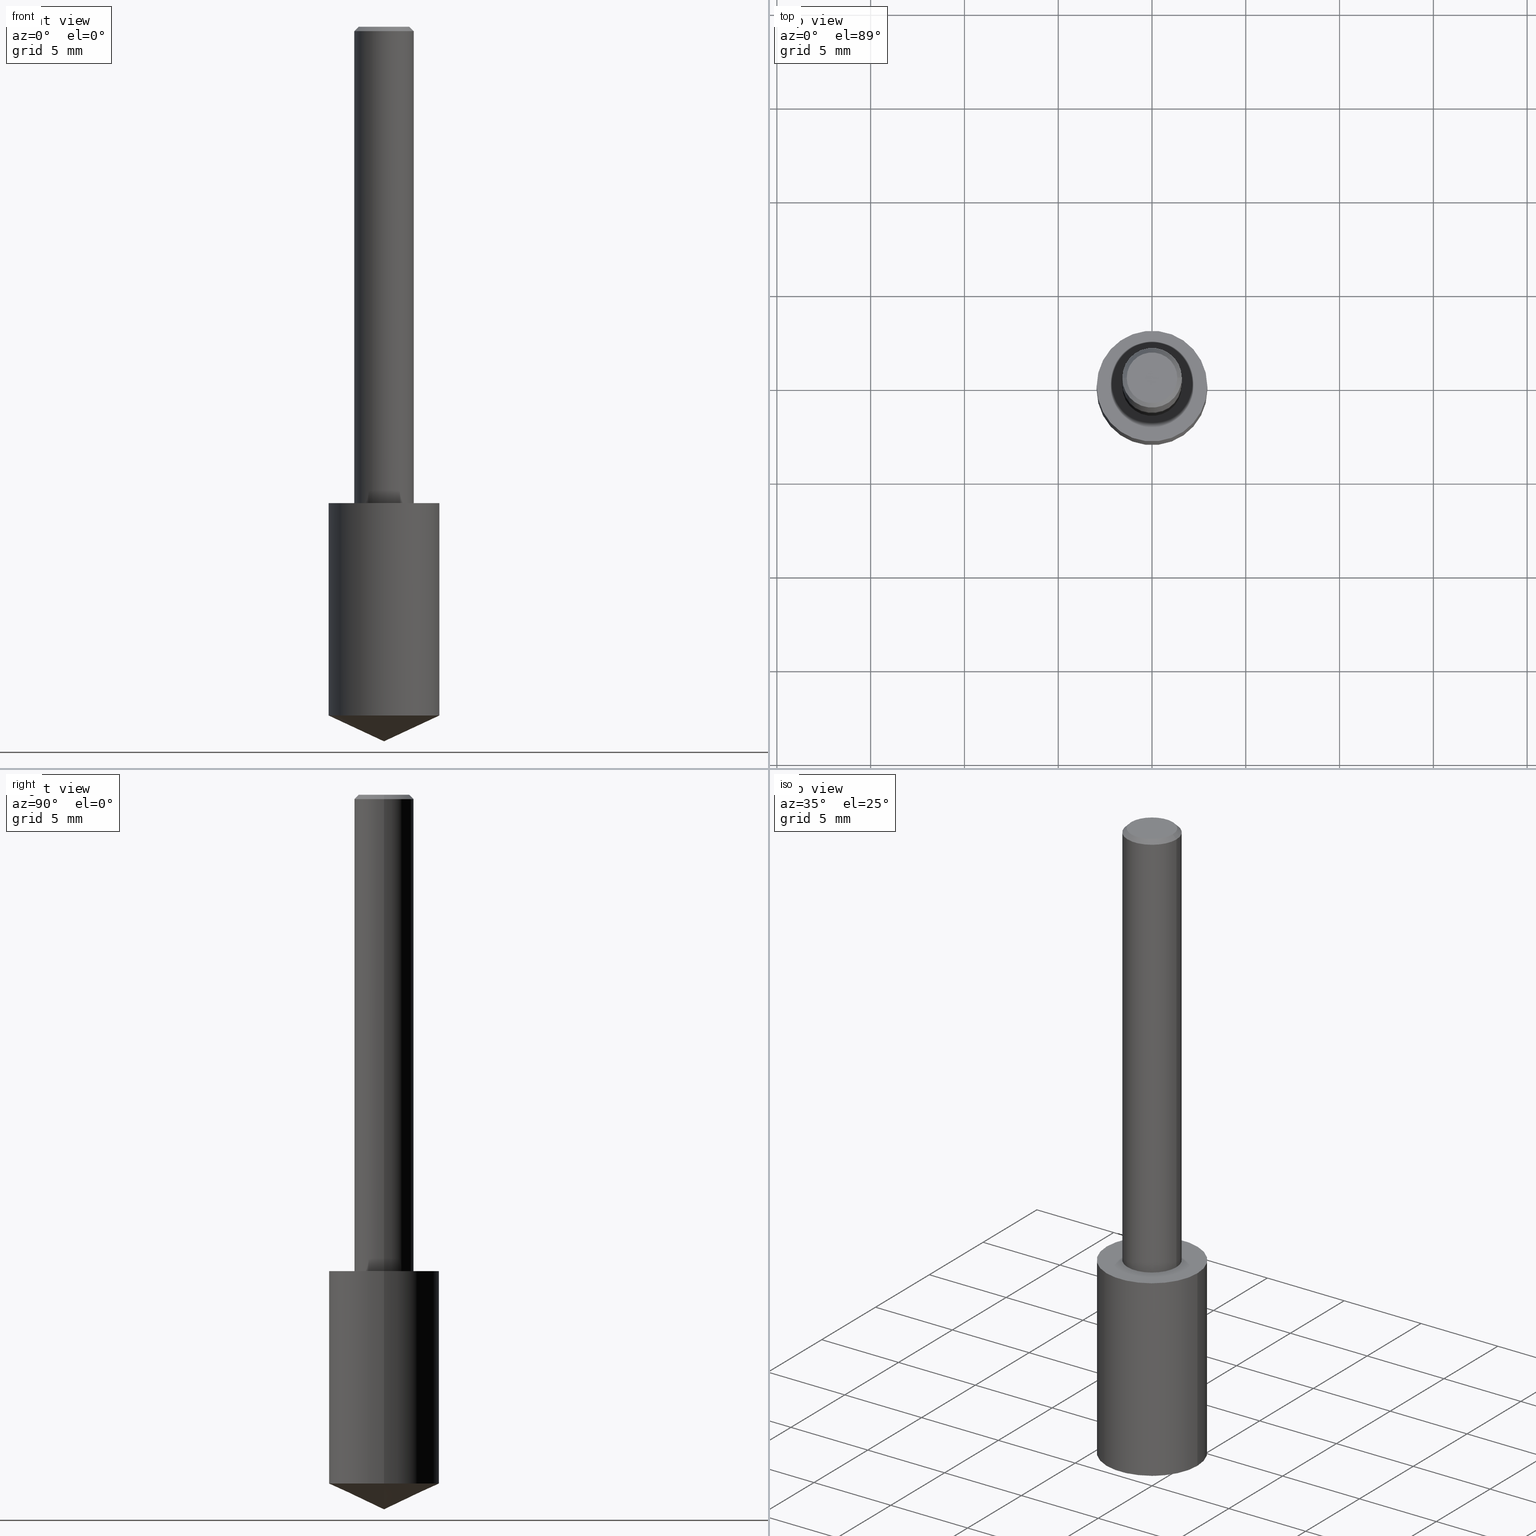
[diagram: canonical four-view strip — front | top / right | iso, engineering-drawing reading convention]
A machine part, canonical four-view strip (front | top / right | iso — engineering-drawing reading convention). The complete STEP part file that produces these views, byte-faithful:
ISO-10303-21;
HEADER;
FILE_DESCRIPTION (( 'STEP AP203' ),
    '1' );
FILE_NAME ('06159.STEP',
    '2024-04-30T18:32:01',
    ( '' ),
    ( '' ),
    'SwSTEP 2.0',
    'SolidWorks 2023',
    '' );
FILE_SCHEMA (( 'CONFIG_CONTROL_DESIGN' ));
ENDSEC;

DATA;
#1 = EDGE_LOOP ( 'NONE', ( #71, #5 ) ) ;
#2 = ORIENTED_EDGE ( 'NONE', *, *, #38, .F. ) ;
#3 = CARTESIAN_POINT ( 'NONE',  ( 2.445468806185137438E-29, -3.491481338843146371E-15, -1.000000000000000222 ) ) ;
#4 =( NAMED_UNIT ( * ) SI_UNIT ( $, .STERADIAN. ) SOLID_ANGLE_UNIT ( ) );
#5 = ORIENTED_EDGE ( 'NONE', *, *, #297, .T. ) ;
#6 = DATE_TIME_ROLE ( 'classification_date' ) ;
#7 = CC_DESIGN_APPROVAL ( #244, ( #108 ) ) ;
#8 = ORIENTED_EDGE ( 'NONE', *, *, #75, .T. ) ;
#9 = DIRECTION ( 'NONE',  ( -2.445468806185136597E-29, 3.491481338843145583E-15, 1.000000000000000000 ) ) ;
#10 = DIRECTION ( 'NONE',  ( -2.445468806185136597E-29, 3.491481338843145583E-15, 1.000000000000000000 ) ) ;
#11 = SECURITY_CLASSIFICATION ( '', '', #190 ) ;
#12 = CC_DESIGN_APPROVAL ( #191, ( #290 ) ) ;
#13 = DIRECTION ( 'NONE',  ( -2.445468806185136597E-29, 3.491481338843145583E-15, 1.000000000000000000 ) ) ;
#14 = CARTESIAN_POINT ( 'NONE',  ( 0.1161500000000000032, -4.302552453856406512E-15, -1.000000000000000222 ) ) ;
#15 = EDGE_CURVE ( 'NONE', #177, #308, #100, .T. ) ;
#16 = FACE_OUTER_BOUND ( 'NONE', #150, .T. ) ;
#17 = ORIENTED_EDGE ( 'NONE', *, *, #114, .T. ) ;
#18 = ORIENTED_EDGE ( 'NONE', *, *, #180, .F. ) ;
#19 = CARTESIAN_POINT ( 'NONE',  ( 0.06250000000000000000, -4.615137624123754923E-16, -0.009375000000000069042 ) ) ;
#20 = PRODUCT ( '06159', '06159', '', ( #294 ) ) ;
#21 =( LENGTH_UNIT ( ) NAMED_UNIT ( * ) SI_UNIT ( $, .METRE. ) );
#22 = EDGE_LOOP ( 'NONE', ( #295, #207, #69, #128 ) ) ;
#23 = CC_DESIGN_PERSON_AND_ORGANIZATION_ASSIGNMENT ( #165, #111, ( #108 ) ) ;
#24 = DIRECTION ( 'NONE',  ( 2.445468806185136597E-29, -3.491481338843145583E-15, -1.000000000000000000 ) ) ;
#25 = DATE_AND_TIME ( #212, #101 ) ;
#26 = DATE_AND_TIME ( #162, #266 ) ;
#27 = AXIS2_PLACEMENT_3D ( 'NONE', #277, #9, #39 ) ;
#28 = APPROVAL_STATUS ( 'not_yet_approved' ) ;
#29 = EDGE_CURVE ( 'NONE', #265, #314, #32, .T. ) ;
#30 = DIRECTION ( 'NONE',  ( -2.445468806185136597E-29, 3.491481338843145583E-15, 1.000000000000000000 ) ) ;
#31 = DIRECTION ( 'NONE',  ( 2.445468806185136597E-29, -3.491481338843145583E-15, -1.000000000000000000 ) ) ;
#32 = LINE ( 'NONE', #254, #299 ) ;
#33 = EDGE_LOOP ( 'NONE', ( #172, #51, #148, #227 ) ) ;
#34 = CARTESIAN_POINT ( 'NONE',  ( 0.06250000000000006939, -4.364351673553921624E-16, 3.047610484872463374E-30 ) ) ;
#35 = DIRECTION ( 'NONE',  ( -1.000000000000000000, 6.982962677686266711E-15, 0.000000000000000000 ) ) ;
#36 = VECTOR ( 'NONE', #120, 39.37007874015748143 ) ;
#37 = CARTESIAN_POINT ( 'NONE',  ( 2.292627005798582375E-31, -3.273263755165473266E-17, -0.009375000000000069042 ) ) ;
#38 = EDGE_CURVE ( 'NONE', #308, #177, #187, .T. ) ;
#39 = DIRECTION ( 'NONE',  ( 1.000000000000000000, -6.982962677686266711E-15, 0.000000000000000000 ) ) ;
#40 = EDGE_LOOP ( 'NONE', ( #57, #103, #18 ) ) ;
#41 = DIRECTION ( 'NONE',  ( -2.445468806185136597E-29, 3.491481338843145583E-15, 1.000000000000000000 ) ) ;
#42 = ORIENTED_EDGE ( 'NONE', *, *, #54, .F. ) ;
#43 = AXIS2_PLACEMENT_3D ( 'NONE', #149, #93, #303 ) ;
#44 = CONICAL_SURFACE ( 'NONE', #188, 0.06250000000000000000, 0.7853981633974447263 ) ;
#45 = CARTESIAN_POINT ( 'NONE',  ( -0.1161500000000000310, -4.222822284559862787E-15, -1.445838365505297096 ) ) ;
#46 = ORIENTED_EDGE ( 'NONE', *, *, #114, .F. ) ;
#47 = ADVANCED_FACE ( 'NONE', ( #225 ), #228, .T. ) ;
#48 = DIRECTION ( 'NONE',  ( 2.438088387897960049E-29, -3.491481338843145188E-15, -1.000000000000000000 ) ) ;
#49 = APPROVAL_ROLE ( '' ) ;
#50 = CC_DESIGN_DATE_AND_TIME_ASSIGNMENT ( #105, #6, ( #11 ) ) ;
#51 = ORIENTED_EDGE ( 'NONE', *, *, #321, .T. ) ;
#52 = CONICAL_SURFACE ( 'NONE', #124, 84.42940631927417883, 1.134464013796315118 ) ;
#53 = FACE_OUTER_BOUND ( 'NONE', #1, .T. ) ;
#54 = EDGE_CURVE ( 'NONE', #177, #210, #90, .T. ) ;
#55 = CALENDAR_DATE ( 2024, 30, 4 ) ;
#56 = DATE_TIME_ROLE ( 'creation_date' ) ;
#57 = ORIENTED_EDGE ( 'NONE', *, *, #29, .F. ) ;
#58 = COORDINATED_UNIVERSAL_TIME_OFFSET ( 5, 0, .BEHIND. ) ;
#59 = CARTESIAN_POINT ( 'NONE',  ( -0.06250000000000000000, -1.318017778347336672E-15, -0.009375000000000069042 ) ) ;
#60 =( GEOMETRIC_REPRESENTATION_CONTEXT ( 3 ) GLOBAL_UNCERTAINTY_ASSIGNED_CONTEXT ( ( #272 ) ) GLOBAL_UNIT_ASSIGNED_CONTEXT ( ( #234, #130, #4 ) ) REPRESENTATION_CONTEXT ( 'NONE', 'WORKASPACE' ) );
#61 = DIRECTION ( 'NONE',  ( 1.000000000000000000, -6.982962677686266711E-15, 0.000000000000000000 ) ) ;
#62 = CC_DESIGN_PERSON_AND_ORGANIZATION_ASSIGNMENT ( #269, #271, ( #11 ) ) ;
#63 = DIRECTION ( 'NONE',  ( -0.9063077870366502697, 7.915267918739016209E-15, 0.4226182617406986641 ) ) ;
#64 = CARTESIAN_POINT ( 'NONE',  ( 2.445468806185137438E-29, -3.491481338843146371E-15, -1.000000000000000222 ) ) ;
#65 = AXIS2_PLACEMENT_3D ( 'NONE', #330, #30, #86 ) ;
#66 = AXIS2_PLACEMENT_3D ( 'NONE', #96, #48, #316 ) ;
#67 = ORIENTED_EDGE ( 'NONE', *, *, #161, .T. ) ;
#68 = CARTESIAN_POINT ( 'NONE',  ( 2.445468806185136877E-29, -3.491481338843145977E-15, -1.000000000000000222 ) ) ;
#69 = ORIENTED_EDGE ( 'NONE', *, *, #198, .F. ) ;
#70 = DIRECTION ( 'NONE',  ( 1.000000000000000000, -6.982962677686265922E-15, 0.000000000000000000 ) ) ;
#71 = ORIENTED_EDGE ( 'NONE', *, *, #198, .T. ) ;
#72 = MANIFOLD_SOLID_BREP ( 'Body-Move/Copy2[1]', #258 ) ;
#73 = CARTESIAN_POINT ( 'NONE',  ( -3.743544432386672853E-50, 5.344789307371238476E-36, 1.530808498934197599E-21 ) ) ;
#74 = CIRCLE ( 'NONE', #280, 0.1161500000000000032 ) ;
#75 = EDGE_CURVE ( 'NONE', #308, #98, #220, .T. ) ;
#76 = VERTEX_POINT ( 'NONE', #91 ) ;
#77 = DIRECTION ( 'NONE',  ( 0.000000000000000000, 0.000000000000000000, 1.000000000000000000 ) ) ;
#78 = ORIENTED_EDGE ( 'NONE', *, *, #15, .F. ) ;
#79 = PERSON_AND_ORGANIZATION ( #239, #208 ) ;
#80 = MANIFOLD_SOLID_BREP ( 'Body-Move/Copy2[2]', #310 ) ;
#81 = APPLICATION_PROTOCOL_DEFINITION ( 'international standard', 'config_control_design', 1994, #211 ) ;
#82 = AXIS2_PLACEMENT_3D ( 'NONE', #236, #154, #231 ) ;
#83 = PERSON_AND_ORGANIZATION_ROLE ( 'creator' ) ;
#84 = APPROVAL_DATE_TIME ( #26, #300 ) ;
#85 = DIRECTION ( 'NONE',  ( -2.445468806185136597E-29, 3.491481338843145583E-15, 1.000000000000000000 ) ) ;
#86 = DIRECTION ( 'NONE',  ( 1.000000000000000000, -6.982962677686265922E-15, 0.000000000000000000 ) ) ;
#87 = DIRECTION ( 'NONE',  ( 1.000000000000000000, -6.982962677686266711E-15, 4.876176775795935793E-29 ) ) ;
#88 = CIRCLE ( 'NONE', #217, 0.1161500000000000032 ) ;
#89 = CC_DESIGN_SECURITY_CLASSIFICATION ( #11, ( #108 ) ) ;
#90 = LINE ( 'NONE', #332, #158 ) ;
#91 = CARTESIAN_POINT ( 'NONE',  ( -0.05312499999999999861, 3.873362110279099094E-16, 3.061616995216862494E-21 ) ) ;
#92 = DIRECTION ( 'NONE',  ( -2.438088387897960049E-29, 3.491481338843145188E-15, 1.000000000000000000 ) ) ;
#93 = DIRECTION ( 'NONE',  ( -2.445468806185136597E-29, 3.491481338843145583E-15, 1.000000000000000000 ) ) ;
#94 = AXIS2_PLACEMENT_3D ( 'NONE', #264, #41, #70 ) ;
#95 = ORIENTED_EDGE ( 'NONE', *, *, #153, .F. ) ;
#96 = CARTESIAN_POINT ( 'NONE',  ( 3.266665215176512903E-29, -2.315481341570540478E-15, -1.000000000000000222 ) ) ;
#97 = EDGE_LOOP ( 'NONE', ( #233, #46, #174, #67 ) ) ;
#98 = VERTEX_POINT ( 'NONE', #173 ) ;
#99 = LENGTH_MEASURE_WITH_UNIT ( LENGTH_MEASURE( 0.02539999999999999897 ), #21 );
#100 = CIRCLE ( 'NONE', #339, 0.06250000000000012490 ) ;
#101 = LOCAL_TIME ( 14, 32, 1.000000000000000000, #193 ) ;
#102 = EDGE_LOOP ( 'NONE', ( #167, #319, #95 ) ) ;
#103 = ORIENTED_EDGE ( 'NONE', *, *, #137, .T. ) ;
#104 = CC_DESIGN_PERSON_AND_ORGANIZATION_ASSIGNMENT ( #79, #181, ( #20 ) ) ;
#105 = DATE_AND_TIME ( #55, #311 ) ;
#106 = DIRECTION ( 'NONE',  ( 1.000000000000000000, -6.982962677686264344E-15, 0.000000000000000000 ) ) ;
#107 = AXIS2_PLACEMENT_3D ( 'NONE', #199, #222, #140 ) ;
#108 = PRODUCT_DEFINITION_FORMATION_WITH_SPECIFIED_SOURCE ( 'ANY', '', #20, .NOT_KNOWN. ) ;
#109 = COORDINATED_UNIVERSAL_TIME_OFFSET ( 5, 0, .BEHIND. ) ;
#110 = CIRCLE ( 'NONE', #27, 0.06250000000000000000 ) ;
#111 = PERSON_AND_ORGANIZATION_ROLE ( 'design_supplier' ) ;
#112 = AXIS2_PLACEMENT_3D ( 'NONE', #318, #77, #322 ) ;
#113 = ADVANCED_BREP_SHAPE_REPRESENTATION ( '06159', ( #72, #80, #112 ), #60 ) ;
#114 = EDGE_CURVE ( 'NONE', #76, #338, #334, .T. ) ;
#115 = VERTEX_POINT ( 'NONE', #163 ) ;
#116 = DIRECTION ( 'NONE',  ( 1.000000000000000000, -6.982962677686266711E-15, 4.876176628004948512E-29 ) ) ;
#117 = CARTESIAN_POINT ( 'NONE',  ( 0.1161500000000000310, -5.859188787158480302E-15, -1.445838365505297096 ) ) ;
#118 = CIRCLE ( 'NONE', #144, 0.06250000000000000000 ) ;
#119 = DIRECTION ( 'NONE',  ( -2.445468806185136597E-29, 3.491481338843145583E-15, 1.000000000000000000 ) ) ;
#120 = DIRECTION ( 'NONE',  ( -2.445468806185136877E-29, 3.491481338843145188E-15, 1.000000000000000000 ) ) ;
#121 = FACE_OUTER_BOUND ( 'NONE', #102, .T. ) ;
#122 = ADVANCED_FACE ( 'NONE', ( #215 ), #169, .T. ) ;
#123 = CYLINDRICAL_SURFACE ( 'NONE', #242, 0.06250000000000006939 ) ;
#124 = AXIS2_PLACEMENT_3D ( 'NONE', #307, #13, #200 ) ;
#125 = CIRCLE ( 'NONE', #82, 0.05312499999999999861 ) ;
#126 = ADVANCED_FACE ( 'NONE', ( #139 ), #219, .T. ) ;
#127 = CARTESIAN_POINT ( 'NONE',  ( -0.1161500000000000032, -2.666185951257790180E-15, -1.000000000000000222 ) ) ;
#128 = ORIENTED_EDGE ( 'NONE', *, *, #175, .F. ) ;
#129 = DIRECTION ( 'NONE',  ( -1.000000000000000000, 6.982962677686265922E-15, -4.876176775795935793E-29 ) ) ;
#130 =( NAMED_UNIT ( * ) PLANE_ANGLE_UNIT ( ) SI_UNIT ( $, .RADIAN. ) );
#131 = ORIENTED_EDGE ( 'NONE', *, *, #161, .F. ) ;
#132 = CONICAL_SURFACE ( 'NONE', #324, 0.06250000000000000000, 0.7853981633974447263 ) ;
#133 = CALENDAR_DATE ( 2024, 30, 4 ) ;
#134 = PRODUCT_DEFINITION_SHAPE ( 'NONE', 'NONE',  #290 ) ;
#135 = APPROVAL_PERSON_ORGANIZATION ( #270, #300, #296 ) ;
#136 = CALENDAR_DATE ( 2024, 30, 4 ) ;
#137 = EDGE_CURVE ( 'NONE', #265, #204, #247, .T. ) ;
#138 = ADVANCED_FACE ( 'NONE', ( #226 ), #309, .F. ) ;
#139 = FACE_OUTER_BOUND ( 'NONE', #292, .T. ) ;
#140 = DIRECTION ( 'NONE',  ( 1.000000000000000000, -6.982962677686266711E-15, 4.876176775795935793E-29 ) ) ;
#141 = ORIENTED_EDGE ( 'NONE', *, *, #15, .T. ) ;
#142 = DIRECTION ( 'NONE',  ( -2.445468806185136597E-29, 3.491481338843145583E-15, 1.000000000000000000 ) ) ;
#143 = CARTESIAN_POINT ( 'NONE',  ( -0.06250000000000012490, -1.318017778347335489E-15, -1.000000000000000222 ) ) ;
#144 = AXIS2_PLACEMENT_3D ( 'NONE', #37, #147, #61 ) ;
#145 = CARTESIAN_POINT ( 'NONE',  ( 3.535752621628908194E-29, -5.048117672145220556E-15, -1.445838365505297096 ) ) ;
#146 = ADVANCED_FACE ( 'NONE', ( #121 ), #52, .T. ) ;
#147 = DIRECTION ( 'NONE',  ( -2.445468806185136597E-29, 3.491481338843145583E-15, 1.000000000000000000 ) ) ;
#148 = ORIENTED_EDGE ( 'NONE', *, *, #201, .T. ) ;
#149 = CARTESIAN_POINT ( 'NONE',  ( 3.535752621628908194E-29, -5.048117672145220556E-15, -1.445838365505297096 ) ) ;
#150 = EDGE_LOOP ( 'NONE', ( #42, #141, #8, #131 ) ) ;
#151 = CARTESIAN_POINT ( 'NONE',  ( 0.06250000000000012490, -3.927916506198539224E-15, -1.000000000000000222 ) ) ;
#152 = AXIS2_PLACEMENT_3D ( 'NONE', #329, #85, #326 ) ;
#153 = EDGE_CURVE ( 'NONE', #204, #314, #74, .T. ) ;
#154 = DIRECTION ( 'NONE',  ( -2.445468806185136597E-29, 3.491481338843145583E-15, 1.000000000000000000 ) ) ;
#155 = FACE_OUTER_BOUND ( 'NONE', #97, .T. ) ;
#156 = CARTESIAN_POINT ( 'NONE',  ( 3.668203209277704895E-29, -5.237222008264718177E-15, -1.500000000000000222 ) ) ;
#157 = ORIENTED_EDGE ( 'NONE', *, *, #335, .F. ) ;
#158 = VECTOR ( 'NONE', #278, 39.37007874015748143 ) ;
#159 = CARTESIAN_POINT ( 'NONE',  ( 2.292627005798582375E-31, -3.273263755165473266E-17, -0.009375000000000069042 ) ) ;
#160 = PERSON_AND_ORGANIZATION ( #239, #208 ) ;
#161 = EDGE_CURVE ( 'NONE', #210, #98, #118, .T. ) ;
#162 = CALENDAR_DATE ( 2024, 30, 4 ) ;
#163 = CARTESIAN_POINT ( 'NONE',  ( -0.1161500000000000032, -3.444504117908826680E-15, -1.000000000000000222 ) ) ;
#164 = CONICAL_SURFACE ( 'NONE', #178, 84.42940631927417883, 1.134464013796315118 ) ;
#165 = PERSON_AND_ORGANIZATION ( #239, #208 ) ;
#166 = COORDINATED_UNIVERSAL_TIME_OFFSET ( 5, 0, .BEHIND. ) ;
#167 = ORIENTED_EDGE ( 'NONE', *, *, #137, .F. ) ;
#168 = PRODUCT_RELATED_PRODUCT_CATEGORY ( 'detail', '', ( #20 ) ) ;
#169 = CYLINDRICAL_SURFACE ( 'NONE', #152, 0.1161500000000000032 ) ;
#170 = AXIS2_PLACEMENT_3D ( 'NONE', #73, #289, #129 ) ;
#171 = ADVANCED_FACE ( 'NONE', ( #253 ), #132, .T. ) ;
#172 = ORIENTED_EDGE ( 'NONE', *, *, #317, .F. ) ;
#173 = CARTESIAN_POINT ( 'NONE',  ( 0.06250000000000000000, -4.691678049070464390E-16, -0.009375000000000069042 ) ) ;
#174 = ORIENTED_EDGE ( 'NONE', *, *, #235, .T. ) ;
#175 = EDGE_CURVE ( 'NONE', #204, #286, #255, .T. ) ;
#176 = LINE ( 'NONE', #19, #213 ) ;
#177 = VERTEX_POINT ( 'NONE', #143 ) ;
#178 = AXIS2_PLACEMENT_3D ( 'NONE', #252, #10, #313 ) ;
#179 = CIRCLE ( 'NONE', #94, 0.1161500000000000032 ) ;
#180 = EDGE_CURVE ( 'NONE', #314, #204, #196, .T. ) ;
#181 = PERSON_AND_ORGANIZATION_ROLE ( 'design_owner' ) ;
#182 = ORIENTED_EDGE ( 'NONE', *, *, #317, .T. ) ;
#183 = ORIENTED_EDGE ( 'NONE', *, *, #75, .F. ) ;
#184 = PERSON_AND_ORGANIZATION ( #239, #208 ) ;
#185 = ORIENTED_EDGE ( 'NONE', *, *, #297, .F. ) ;
#186 = CARTESIAN_POINT ( 'NONE',  ( 0.1161500000000000032, -4.302552453856405723E-15, -1.000000000000000222 ) ) ;
#187 = CIRCLE ( 'NONE', #230, 0.06250000000000012490 ) ;
#188 = AXIS2_PLACEMENT_3D ( 'NONE', #159, #24, #203 ) ;
#189 = ADVANCED_FACE ( 'NONE', ( #195 ), #164, .T. ) ;
#190 = SECURITY_CLASSIFICATION_LEVEL ( 'unclassified' ) ;
#191 = APPROVAL ( #293, 'UNSPECIFIED' ) ;
#192 = AXIS2_PLACEMENT_3D ( 'NONE', #64, #92, #202 ) ;
#193 = COORDINATED_UNIVERSAL_TIME_OFFSET ( 5, 0, .BEHIND. ) ;
#194 = DIRECTION ( 'NONE',  ( -2.445468806185136597E-29, 3.491481338843145583E-15, 1.000000000000000000 ) ) ;
#195 = FACE_OUTER_BOUND ( 'NONE', #40, .T. ) ;
#196 = CIRCLE ( 'NONE', #43, 0.1161500000000000032 ) ;
#197 = DIRECTION ( 'NONE',  ( -0.7071067811865450192, 2.468850131082230634E-15, -0.7071067811865500152 ) ) ;
#198 = EDGE_CURVE ( 'NONE', #286, #115, #88, .T. ) ;
#199 = CARTESIAN_POINT ( 'NONE',  ( 0.000000000000000000, 0.000000000000000000, 0.000000000000000000 ) ) ;
#200 = DIRECTION ( 'NONE',  ( 1.000000000000000000, -6.982962677686266711E-15, 0.000000000000000000 ) ) ;
#201 = EDGE_CURVE ( 'NONE', #98, #210, #110, .T. ) ;
#202 = DIRECTION ( 'NONE',  ( 1.000000000000000000, -6.982962677686265922E-15, 4.876176775795935793E-29 ) ) ;
#203 = DIRECTION ( 'NONE',  ( -1.000000000000000000, 6.982962677686266711E-15, 0.000000000000000000 ) ) ;
#204 = VERTEX_POINT ( 'NONE', #117 ) ;
#205 = ORIENTED_EDGE ( 'NONE', *, *, #38, .T. ) ;
#206 = CC_DESIGN_APPROVAL ( #300, ( #11 ) ) ;
#207 = ORIENTED_EDGE ( 'NONE', *, *, #335, .T. ) ;
#208 = ORGANIZATION ( 'UNSPECIFIED', 'UNSPECIFIED', '' ) ;
#209 = CARTESIAN_POINT ( 'NONE',  ( 0.05312499999999999861, -4.129888592719939842E-16, 3.061617000609493422E-21 ) ) ;
#210 = VERTEX_POINT ( 'NONE', #59 ) ;
#211 = APPLICATION_CONTEXT ( 'configuration controlled 3d designs of mechanical parts and assemblies' ) ;
#212 = CALENDAR_DATE ( 2024, 30, 4 ) ;
#213 = VECTOR ( 'NONE', #287, 39.37007874015748143 ) ;
#214 = APPROVAL_DATE_TIME ( #25, #244 ) ;
#215 = FACE_OUTER_BOUND ( 'NONE', #22, .T. ) ;
#216 = APPROVAL_DATE_TIME ( #323, #191 ) ;
#217 = AXIS2_PLACEMENT_3D ( 'NONE', #68, #119, #284 ) ;
#218 = CC_DESIGN_PERSON_AND_ORGANIZATION_ASSIGNMENT ( #298, #241, ( #290 ) ) ;
#219 = CYLINDRICAL_SURFACE ( 'NONE', #65, 0.1161500000000000032 ) ;
#220 = LINE ( 'NONE', #34, #36 ) ;
#221 = ORIENTED_EDGE ( 'NONE', *, *, #201, .F. ) ;
#222 = DIRECTION ( 'NONE',  ( -2.445468806185136597E-29, 3.491481338843145583E-15, 1.000000000000000000 ) ) ;
#223 = DIRECTION ( 'NONE',  ( -2.445468806185136877E-29, 3.491481338843145188E-15, 1.000000000000000000 ) ) ;
#224 = AXIS2_PLACEMENT_3D ( 'NONE', #302, #194, #116 ) ;
#225 = FACE_OUTER_BOUND ( 'NONE', #320, .T. ) ;
#226 = FACE_OUTER_BOUND ( 'NONE', #283, .T. ) ;
#227 = ORIENTED_EDGE ( 'NONE', *, *, #235, .F. ) ;
#228 = CYLINDRICAL_SURFACE ( 'NONE', #107, 0.06250000000000006939 ) ;
#229 = DIRECTION ( 'NONE',  ( -2.445468806185136597E-29, 3.491481338843145583E-15, 1.000000000000000000 ) ) ;
#230 = AXIS2_PLACEMENT_3D ( 'NONE', #312, #142, #251 ) ;
#231 = DIRECTION ( 'NONE',  ( 1.000000000000000000, -6.982962677686266711E-15, 4.876176628004948512E-29 ) ) ;
#232 = FACE_OUTER_BOUND ( 'NONE', #261, .T. ) ;
#233 = ORIENTED_EDGE ( 'NONE', *, *, #321, .F. ) ;
#234 =( CONVERSION_BASED_UNIT ( 'INCH', #99 ) LENGTH_UNIT ( ) NAMED_UNIT ( #248 ) );
#235 = EDGE_CURVE ( 'NONE', #76, #210, #257, .T. ) ;
#236 = CARTESIAN_POINT ( 'NONE',  ( -7.487088864773345706E-50, 1.068957861474247695E-35, 3.061616997868395197E-21 ) ) ;
#237 = LOCAL_TIME ( 14, 32, 1.000000000000000000, #109 ) ;
#238 = LINE ( 'NONE', #127, #276 ) ;
#239 = PERSON ( 'UNSPECIFIED', 'UNSPECIFIED', 'UNSPECIFIED', ('UNSPECIFIED'), ('UNSPECIFIED'), ('UNSPECIFIED') ) ;
#240 = SHAPE_DEFINITION_REPRESENTATION ( #134, #113 ) ;
#241 = PERSON_AND_ORGANIZATION_ROLE ( 'creator' ) ;
#242 = AXIS2_PLACEMENT_3D ( 'NONE', #331, #305, #87 ) ;
#243 = PERSON_AND_ORGANIZATION ( #239, #208 ) ;
#244 = APPROVAL ( #325, 'UNSPECIFIED' ) ;
#245 = DESIGN_CONTEXT ( 'detailed design', #267, 'design' ) ;
#246 = APPROVAL_PERSON_ORGANIZATION ( #184, #191, #49 ) ;
#247 = LINE ( 'NONE', #281, #274 ) ;
#248 = DIMENSIONAL_EXPONENTS ( 1.000000000000000000, 0.000000000000000000, 0.000000000000000000, 0.000000000000000000, 0.000000000000000000, 0.000000000000000000, 0.000000000000000000 ) ;
#249 = ADVANCED_FACE ( 'NONE', ( #16 ), #123, .T. ) ;
#250 = DIRECTION ( 'NONE',  ( 0.9063077870366502697, -4.853149677051385890E-15, 0.4226182617406986641 ) ) ;
#251 = DIRECTION ( 'NONE',  ( 1.000000000000000000, -6.982962677686264344E-15, 0.000000000000000000 ) ) ;
#252 = CARTESIAN_POINT ( 'NONE',  ( -9.261009624683002666E-28, 1.322226732217803884E-13, 37.87007874015748143 ) ) ;
#253 = FACE_OUTER_BOUND ( 'NONE', #33, .T. ) ;
#254 = CARTESIAN_POINT ( 'NONE',  ( 3.668203209277704895E-29, -5.237222008264718177E-15, -1.500000000000000222 ) ) ;
#255 = LINE ( 'NONE', #14, #328 ) ;
#256 = CC_DESIGN_DATE_AND_TIME_ASSIGNMENT ( #273, #56, ( #290 ) ) ;
#257 = LINE ( 'NONE', #333, #340 ) ;
#258 = CLOSED_SHELL ( 'NONE', ( #122, #146, #189, #126, #275 ) ) ;
#259 = LOCAL_TIME ( 14, 32, 1.000000000000000000, #166 ) ;
#260 = PLANE ( 'NONE',  #66 ) ;
#261 = EDGE_LOOP ( 'NONE', ( #17, #182 ) ) ;
#262 = ADVANCED_FACE ( 'NONE', ( #232 ), #268, .F. ) ;
#263 = DIRECTION ( 'NONE',  ( -2.445468806185136877E-29, 3.491481338843145188E-15, 1.000000000000000000 ) ) ;
#264 = CARTESIAN_POINT ( 'NONE',  ( 2.445468806185136877E-29, -3.491481338843145977E-15, -1.000000000000000222 ) ) ;
#265 = VERTEX_POINT ( 'NONE', #156 ) ;
#266 = LOCAL_TIME ( 14, 32, 1.000000000000000000, #327 ) ;
#267 = APPLICATION_CONTEXT ( 'configuration controlled 3d designs of mechanical parts and assemblies' ) ;
#268 = PLANE ( 'NONE',  #170 ) ;
#269 = PERSON_AND_ORGANIZATION ( #239, #208 ) ;
#270 = PERSON_AND_ORGANIZATION ( #239, #208 ) ;
#271 = PERSON_AND_ORGANIZATION_ROLE ( 'classification_officer' ) ;
#272 = UNCERTAINTY_MEASURE_WITH_UNIT (LENGTH_MEASURE( 1.000000000000000082E-05 ), #234, 'distance_accuracy_value', 'NONE');
#273 = DATE_AND_TIME ( #136, #237 ) ;
#274 = VECTOR ( 'NONE', #250, 39.37007874015748143 ) ;
#275 = ADVANCED_FACE ( 'NONE', ( #53 ), #260, .F. ) ;
#276 = VECTOR ( 'NONE', #263, 39.37007874015748143 ) ;
#277 = CARTESIAN_POINT ( 'NONE',  ( 2.292627005798582375E-31, -3.273263755165473266E-17, -0.009375000000000069042 ) ) ;
#278 = DIRECTION ( 'NONE',  ( -2.445468806185136877E-29, 3.491481338843145188E-15, 1.000000000000000000 ) ) ;
#279 = DIRECTION ( 'NONE',  ( 1.000000000000000000, -6.982962677686265922E-15, 0.000000000000000000 ) ) ;
#280 = AXIS2_PLACEMENT_3D ( 'NONE', #145, #229, #279 ) ;
#281 = CARTESIAN_POINT ( 'NONE',  ( 3.668203209277704895E-29, -5.237222008264718177E-15, -1.500000000000000222 ) ) ;
#282 = CC_DESIGN_PERSON_AND_ORGANIZATION_ASSIGNMENT ( #243, #83, ( #108 ) ) ;
#283 = EDGE_LOOP ( 'NONE', ( #2, #78 ) ) ;
#284 = DIRECTION ( 'NONE',  ( 1.000000000000000000, -6.982962677686265922E-15, 0.000000000000000000 ) ) ;
#285 = DIRECTION ( 'NONE',  ( -2.445468806185136597E-29, 3.491481338843145583E-15, 1.000000000000000000 ) ) ;
#286 = VERTEX_POINT ( 'NONE', #186 ) ;
#287 = DIRECTION ( 'NONE',  ( 0.7071067811865450192, -7.319954787623246579E-15, -0.7071067811865500152 ) ) ;
#288 = ADVANCED_FACE ( 'NONE', ( #155 ), #44, .T. ) ;
#289 = DIRECTION ( 'NONE',  ( 2.438088387897960049E-29, -3.491481338843145188E-15, -1.000000000000000000 ) ) ;
#290 = PRODUCT_DEFINITION ( 'UNKNOWN', '', #108, #245 ) ;
#291 = APPLICATION_PROTOCOL_DEFINITION ( 'international standard', 'config_control_design', 1994, #267 ) ;
#292 = EDGE_LOOP ( 'NONE', ( #157, #336, #315, #185 ) ) ;
#293 = APPROVAL_STATUS ( 'not_yet_approved' ) ;
#294 = MECHANICAL_CONTEXT ( 'NONE', #211, 'mechanical' ) ;
#295 = ORIENTED_EDGE ( 'NONE', *, *, #153, .T. ) ;
#296 = APPROVAL_ROLE ( '' ) ;
#297 = EDGE_CURVE ( 'NONE', #115, #286, #179, .T. ) ;
#298 = PERSON_AND_ORGANIZATION ( #239, #208 ) ;
#299 = VECTOR ( 'NONE', #63, 39.37007874015748143 ) ;
#300 = APPROVAL ( #28, 'UNSPECIFIED' ) ;
#301 = APPROVAL_ROLE ( '' ) ;
#302 = CARTESIAN_POINT ( 'NONE',  ( -7.487088864773345706E-50, 1.068957861474247695E-35, 3.061616997868395197E-21 ) ) ;
#303 = DIRECTION ( 'NONE',  ( 1.000000000000000000, -6.982962677686265922E-15, 0.000000000000000000 ) ) ;
#304 = APPROVAL_PERSON_ORGANIZATION ( #160, #244, #301 ) ;
#305 = DIRECTION ( 'NONE',  ( -2.445468806185136597E-29, 3.491481338843145583E-15, 1.000000000000000000 ) ) ;
#306 = ORIENTED_EDGE ( 'NONE', *, *, #54, .T. ) ;
#307 = CARTESIAN_POINT ( 'NONE',  ( -9.261009624683002666E-28, 1.322226732217803884E-13, 37.87007874015748143 ) ) ;
#308 = VERTEX_POINT ( 'NONE', #151 ) ;
#309 = PLANE ( 'NONE',  #192 ) ;
#310 = CLOSED_SHELL ( 'NONE', ( #171, #47, #138, #249, #288, #262 ) ) ;
#311 = LOCAL_TIME ( 14, 32, 1.000000000000000000, #58 ) ;
#312 = CARTESIAN_POINT ( 'NONE',  ( 2.445468806185137438E-29, -3.491481338843146371E-15, -1.000000000000000222 ) ) ;
#313 = DIRECTION ( 'NONE',  ( 1.000000000000000000, -6.982962677686266711E-15, 0.000000000000000000 ) ) ;
#314 = VERTEX_POINT ( 'NONE', #45 ) ;
#315 = ORIENTED_EDGE ( 'NONE', *, *, #175, .T. ) ;
#316 = DIRECTION ( 'NONE',  ( -1.000000000000000000, 6.982962677686265922E-15, -4.876176775795935793E-29 ) ) ;
#317 = EDGE_CURVE ( 'NONE', #338, #76, #125, .T. ) ;
#318 = CARTESIAN_POINT ( 'NONE',  ( 0.000000000000000000, 0.000000000000000000, 0.000000000000000000 ) ) ;
#319 = ORIENTED_EDGE ( 'NONE', *, *, #29, .T. ) ;
#320 = EDGE_LOOP ( 'NONE', ( #205, #306, #221, #183 ) ) ;
#321 = EDGE_CURVE ( 'NONE', #338, #98, #176, .T. ) ;
#322 = DIRECTION ( 'NONE',  ( 1.000000000000000000, 0.000000000000000000, 0.000000000000000000 ) ) ;
#323 = DATE_AND_TIME ( #133, #259 ) ;
#324 = AXIS2_PLACEMENT_3D ( 'NONE', #337, #31, #35 ) ;
#325 = APPROVAL_STATUS ( 'not_yet_approved' ) ;
#326 = DIRECTION ( 'NONE',  ( 1.000000000000000000, -6.982962677686265922E-15, 0.000000000000000000 ) ) ;
#327 = COORDINATED_UNIVERSAL_TIME_OFFSET ( 5, 0, .BEHIND. ) ;
#328 = VECTOR ( 'NONE', #223, 39.37007874015748143 ) ;
#329 = CARTESIAN_POINT ( 'NONE',  ( 2.445468806185137438E-29, -3.491481338843146371E-15, -1.000000000000000222 ) ) ;
#330 = CARTESIAN_POINT ( 'NONE',  ( 2.445468806185137438E-29, -3.491481338843146371E-15, -1.000000000000000222 ) ) ;
#331 = CARTESIAN_POINT ( 'NONE',  ( 0.000000000000000000, 0.000000000000000000, 0.000000000000000000 ) ) ;
#332 = CARTESIAN_POINT ( 'NONE',  ( -0.06250000000000006939, 4.440892098500631092E-16, -3.074334431409319267E-30 ) ) ;
#333 = CARTESIAN_POINT ( 'NONE',  ( -0.06250000000000000000, 4.037025298037369491E-16, -0.009375000000000069042 ) ) ;
#334 = CIRCLE ( 'NONE', #224, 0.05312499999999999861 ) ;
#335 = EDGE_CURVE ( 'NONE', #314, #115, #238, .T. ) ;
#336 = ORIENTED_EDGE ( 'NONE', *, *, #180, .T. ) ;
#337 = CARTESIAN_POINT ( 'NONE',  ( 2.292627005798582375E-31, -3.273263755165473266E-17, -0.009375000000000069042 ) ) ;
#338 = VERTEX_POINT ( 'NONE', #209 ) ;
#339 = AXIS2_PLACEMENT_3D ( 'NONE', #3, #285, #106 ) ;
#340 = VECTOR ( 'NONE', #197, 39.37007874015748143 ) ;
ENDSEC;
END-ISO-10303-21;
